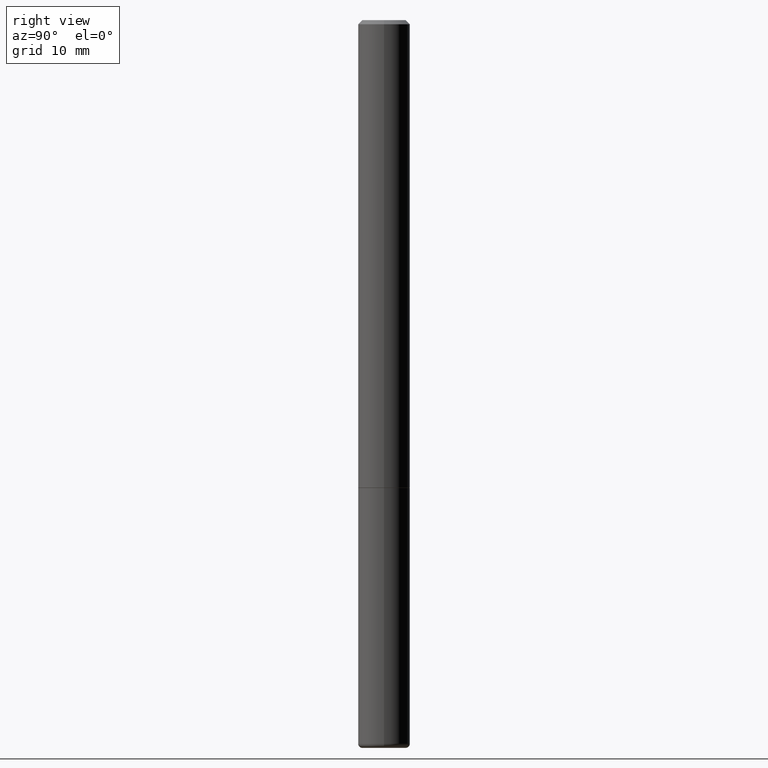
[diagram: clean part render]
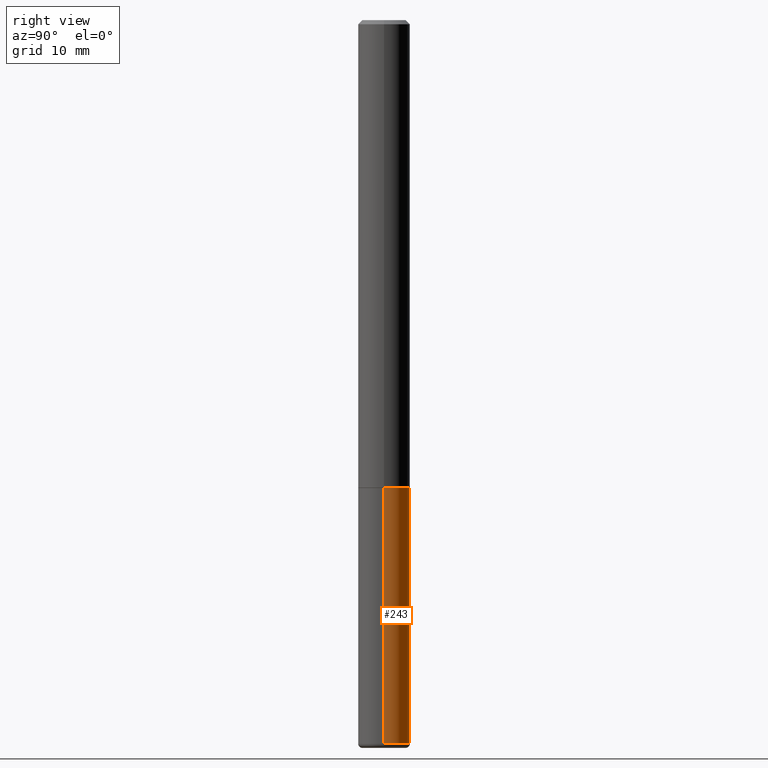
[diagram: same view with one face highlighted and labeled with its STEP entity id]
A machine part, right view. The second image highlights one B-rep face of the part: STEP entity #243.
In plain terms, the highlighted cylindrical surface (edge-blend (fillet) strip) has radius 3.175 mm, axis along (-0, 0, 1).
Its self-contained STEP definition (entity closure, byte-faithful):
#1 = AXIS2_PLACEMENT_3D ( 'NONE', #5, #384, #197 ) ;
#5 = CARTESIAN_POINT ( 'NONE',  ( 0.000000000000000000, 0.000000000000000000, 0.000000000000000000 ) ) ;
#9 = VERTEX_POINT ( 'NONE', #140 ) ;
#15 = VERTEX_POINT ( 'NONE', #224 ) ;
#29 = DIRECTION ( 'NONE',  ( -2.445468806185136877E-29, 3.491481338843145188E-15, 1.000000000000000000 ) ) ;
#49 = CARTESIAN_POINT ( 'NONE',  ( -0.1250000000000000278, -9.114916945534594439E-15, -3.480000761538716514 ) ) ;
#54 = ORIENTED_EDGE ( 'NONE', *, *, #267, .F. ) ;
#68 = EDGE_CURVE ( 'NONE', #340, #9, #297, .T. ) ;
#69 = CARTESIAN_POINT ( 'NONE',  ( 0.1250000000000000278, -8.728703347107836346E-16, 6.095220969744921142E-30 ) ) ;
#78 = CARTESIAN_POINT ( 'NONE',  ( 0.1250000000000000278, -8.728703347107860209E-15, -2.249999999999999556 ) ) ;
#97 = ORIENTED_EDGE ( 'NONE', *, *, #102, .F. ) ;
#102 = EDGE_CURVE ( 'NONE', #15, #173, #379, .T. ) ;
#114 = EDGE_CURVE ( 'NONE', #15, #340, #466, .T. ) ;
#121 = CARTESIAN_POINT ( 'NONE',  ( 5.502304813916556222E-29, -7.855833012397075293E-15, -2.249999999999999556 ) ) ;
#127 = CYLINDRICAL_SURFACE ( 'NONE', #1, 0.1250000000000000278 ) ;
#140 = CARTESIAN_POINT ( 'NONE',  ( -0.1250000000000000278, -9.114916945534594439E-15, -2.249999999999999556 ) ) ;
#152 = VECTOR ( 'NONE', #29, 39.37007874015748143 ) ;
#173 = VERTEX_POINT ( 'NONE', #78 ) ;
#197 = DIRECTION ( 'NONE',  ( 1.000000000000000000, -6.982962677686267499E-15, 4.876176775795935793E-29 ) ) ;
#217 = CARTESIAN_POINT ( 'NONE',  ( 8.510233307843451119E-29, -1.215035771807236405E-14, -3.480000761538716514 ) ) ;
#224 = CARTESIAN_POINT ( 'NONE',  ( 0.1250000000000000278, -1.302322805278314581E-14, -3.480000761538716514 ) ) ;
#227 = DIRECTION ( 'NONE',  ( -2.445468806185136877E-29, 3.491481338843145188E-15, 1.000000000000000000 ) ) ;
#237 = DIRECTION ( 'NONE',  ( -2.445468806185136597E-29, 3.491481338843145583E-15, 1.000000000000000000 ) ) ;
#242 = EDGE_LOOP ( 'NONE', ( #250, #326, #54, #97 ) ) ;
#243 = ADVANCED_FACE ( 'NONE', ( #431 ), #127, .T. ) ;
#250 = ORIENTED_EDGE ( 'NONE', *, *, #114, .T. ) ;
#259 = AXIS2_PLACEMENT_3D ( 'NONE', #217, #260, #488 ) ;
#260 = DIRECTION ( 'NONE',  ( -2.445468806185136597E-29, 3.491481338843145583E-15, 1.000000000000000000 ) ) ;
#267 = EDGE_CURVE ( 'NONE', #173, #9, #418, .T. ) ;
#297 = LINE ( 'NONE', #376, #483 ) ;
#323 = AXIS2_PLACEMENT_3D ( 'NONE', #121, #237, #458 ) ;
#326 = ORIENTED_EDGE ( 'NONE', *, *, #68, .T. ) ;
#340 = VERTEX_POINT ( 'NONE', #49 ) ;
#376 = CARTESIAN_POINT ( 'NONE',  ( -0.1250000000000000278, 8.881784197001254296E-16, -6.148668862818634329E-30 ) ) ;
#379 = LINE ( 'NONE', #69, #152 ) ;
#384 = DIRECTION ( 'NONE',  ( -2.445468806185136597E-29, 3.491481338843145583E-15, 1.000000000000000000 ) ) ;
#418 = CIRCLE ( 'NONE', #323, 0.1250000000000000278 ) ;
#431 = FACE_OUTER_BOUND ( 'NONE', #242, .T. ) ;
#458 = DIRECTION ( 'NONE',  ( 1.000000000000000000, -6.982962677686269077E-15, 0.000000000000000000 ) ) ;
#466 = CIRCLE ( 'NONE', #259, 0.1250000000000000278 ) ;
#483 = VECTOR ( 'NONE', #227, 39.37007874015748143 ) ;
#488 = DIRECTION ( 'NONE',  ( 1.000000000000000000, -6.982962677686261189E-15, 0.000000000000000000 ) ) ;